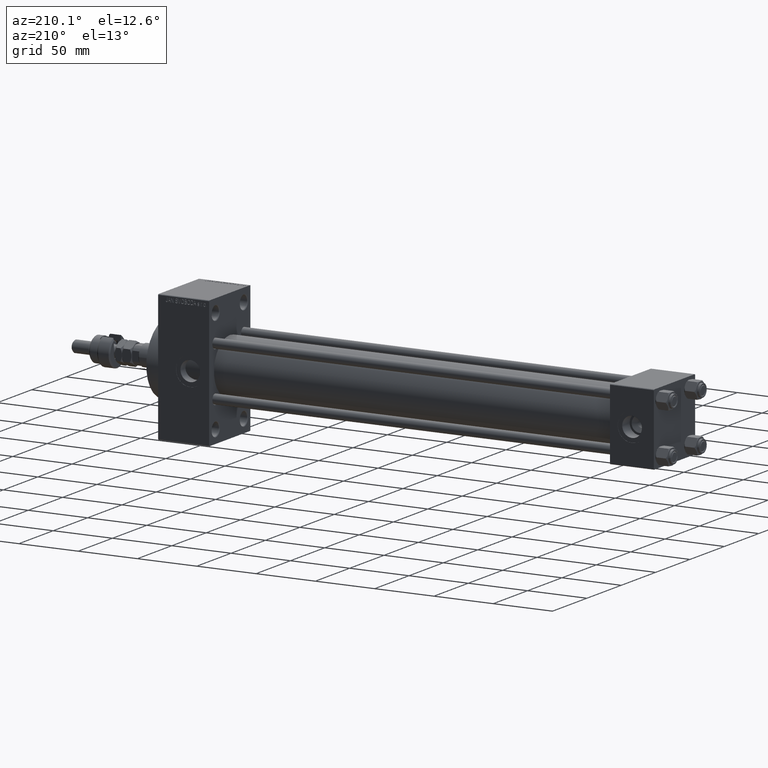
[diagram: clean part render]
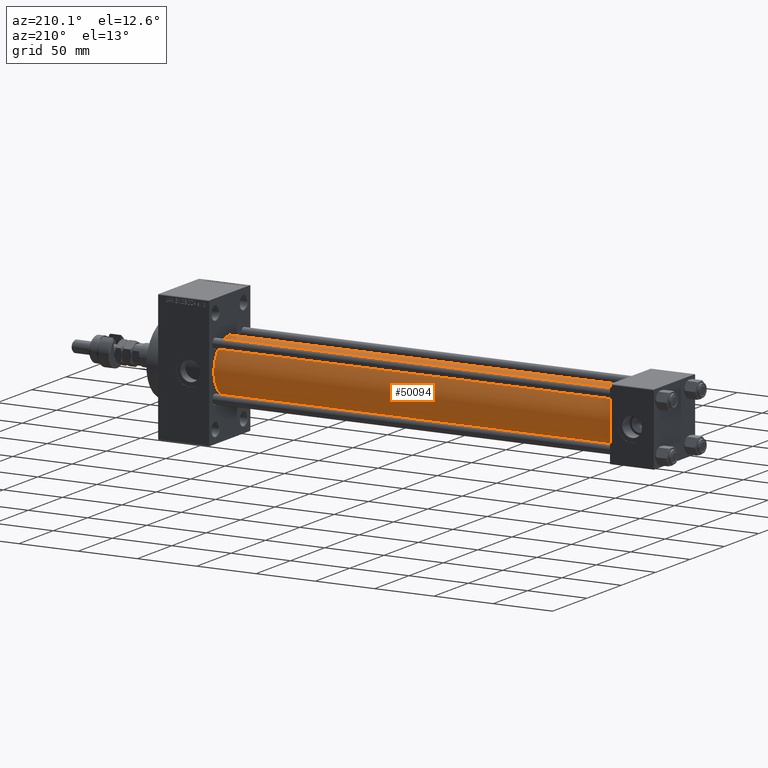
[diagram: same view with one face highlighted and labeled with its STEP entity id]
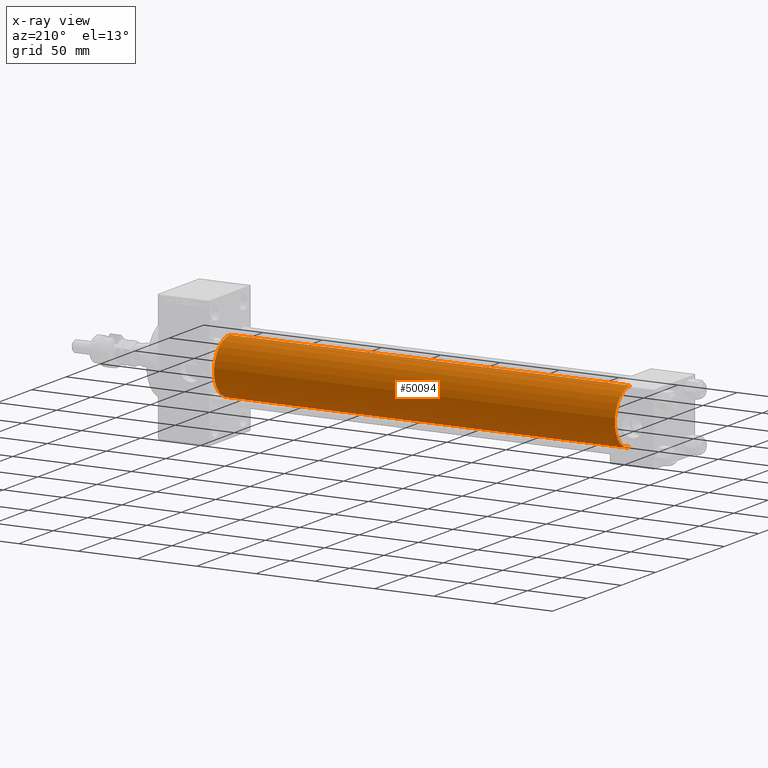
[diagram: x-ray of the same camera — body ghosted, the highlighted face saturated]
A machine part, auxiliary view. The second image highlights one B-rep face of the part: STEP entity #50094.
The next image is the same camera in x-ray: the body ghosted, the highlighted face saturated — about 0% of this face is hidden behind the body in this view.
In plain terms, the highlighted cylindrical surface (edge-blend (fillet) strip) has radius 23 mm, axis along (-1, -0, -0).
Its self-contained STEP definition (entity closure, byte-faithful):
#370 = AXIS2_PLACEMENT_3D ( 'NONE', #28411, #36565, #51867 ) ;
#921 = EDGE_CURVE ( 'NONE', #4285, #3357, #17737, .T. ) ;
#3357 = VERTEX_POINT ( 'NONE', #50606 ) ;
#4285 = VERTEX_POINT ( 'NONE', #25354 ) ;
#6003 = EDGE_LOOP ( 'NONE', ( #21639, #27666, #23161, #34300 ) ) ;
#11336 = CIRCLE ( 'NONE', #370, 23.00000000000000000 ) ;
#13771 = CARTESIAN_POINT ( 'NONE',  ( 375.0000000000000000, -2.602085213965210642E-15, 23.00000000000000000 ) ) ;
#17372 = VERTEX_POINT ( 'NONE', #27023 ) ;
#17737 = LINE ( 'NONE', #33788, #27131 ) ;
#21500 = CARTESIAN_POINT ( 'NONE',  ( 36.99999999999997868, -2.602085213965210642E-15, 0.000000000000000000 ) ) ;
#21639 = ORIENTED_EDGE ( 'NONE', *, *, #30132, .F. ) ;
#22575 = CIRCLE ( 'NONE', #52023, 23.00000000000000000 ) ;
#23161 = ORIENTED_EDGE ( 'NONE', *, *, #38933, .T. ) ;
#25354 = CARTESIAN_POINT ( 'NONE',  ( 375.0000000000000000, 2.146024240737016609E-16, -23.00000000000000000 ) ) ;
#27023 = CARTESIAN_POINT ( 'NONE',  ( 36.99999999999997868, -2.602085213965210642E-15, 23.00000000000000000 ) ) ;
#27131 = VECTOR ( 'NONE', #29832, 1000.000000000000000 ) ;
#27157 = FACE_OUTER_BOUND ( 'NONE', #6003, .T. ) ;
#27666 = ORIENTED_EDGE ( 'NONE', *, *, #921, .T. ) ;
#28411 = CARTESIAN_POINT ( 'NONE',  ( 375.0000000000000000, -2.602085213965210642E-15, 0.000000000000000000 ) ) ;
#29832 = DIRECTION ( 'NONE',  ( -1.000000000000000000, -0.000000000000000000, -0.000000000000000000 ) ) ;
#30132 = EDGE_CURVE ( 'NONE', #4285, #48914, #11336, .T. ) ;
#31105 = CARTESIAN_POINT ( 'NONE',  ( 375.0000000000000000, -2.602085213965210642E-15, 0.000000000000000000 ) ) ;
#33359 = AXIS2_PLACEMENT_3D ( 'NONE', #31105, #42940, #50858 ) ;
#33788 = CARTESIAN_POINT ( 'NONE',  ( 375.0000000000000000, 2.146024240737016609E-16, -23.00000000000000000 ) ) ;
#33793 = LINE ( 'NONE', #13771, #42701 ) ;
#34300 = ORIENTED_EDGE ( 'NONE', *, *, #38085, .F. ) ;
#36565 = DIRECTION ( 'NONE',  ( 1.000000000000000000, 0.000000000000000000, 0.000000000000000000 ) ) ;
#37230 = CARTESIAN_POINT ( 'NONE',  ( 375.0000000000000000, -2.602085213965210642E-15, 23.00000000000000000 ) ) ;
#38085 = EDGE_CURVE ( 'NONE', #48914, #17372, #33793, .T. ) ;
#38741 = CYLINDRICAL_SURFACE ( 'NONE', #33359, 23.00000000000000000 ) ;
#38933 = EDGE_CURVE ( 'NONE', #3357, #17372, #22575, .T. ) ;
#42701 = VECTOR ( 'NONE', #45900, 1000.000000000000000 ) ;
#42940 = DIRECTION ( 'NONE',  ( -1.000000000000000000, -0.000000000000000000, -0.000000000000000000 ) ) ;
#45900 = DIRECTION ( 'NONE',  ( -1.000000000000000000, -0.000000000000000000, -0.000000000000000000 ) ) ;
#48914 = VERTEX_POINT ( 'NONE', #37230 ) ;
#50094 = ADVANCED_FACE ( 'NONE', ( #27157 ), #38741, .T. ) ;
#50198 = DIRECTION ( 'NONE',  ( 0.000000000000000000, 0.000000000000000000, 1.000000000000000000 ) ) ;
#50458 = DIRECTION ( 'NONE',  ( 1.000000000000000000, -0.000000000000000000, 0.000000000000000000 ) ) ;
#50606 = CARTESIAN_POINT ( 'NONE',  ( 36.99999999999997868, 2.146024240737016609E-16, -23.00000000000000000 ) ) ;
#50858 = DIRECTION ( 'NONE',  ( 0.000000000000000000, 0.000000000000000000, 1.000000000000000000 ) ) ;
#51867 = DIRECTION ( 'NONE',  ( 0.000000000000000000, 0.000000000000000000, -1.000000000000000000 ) ) ;
#52023 = AXIS2_PLACEMENT_3D ( 'NONE', #21500, #50458, #50198 ) ;